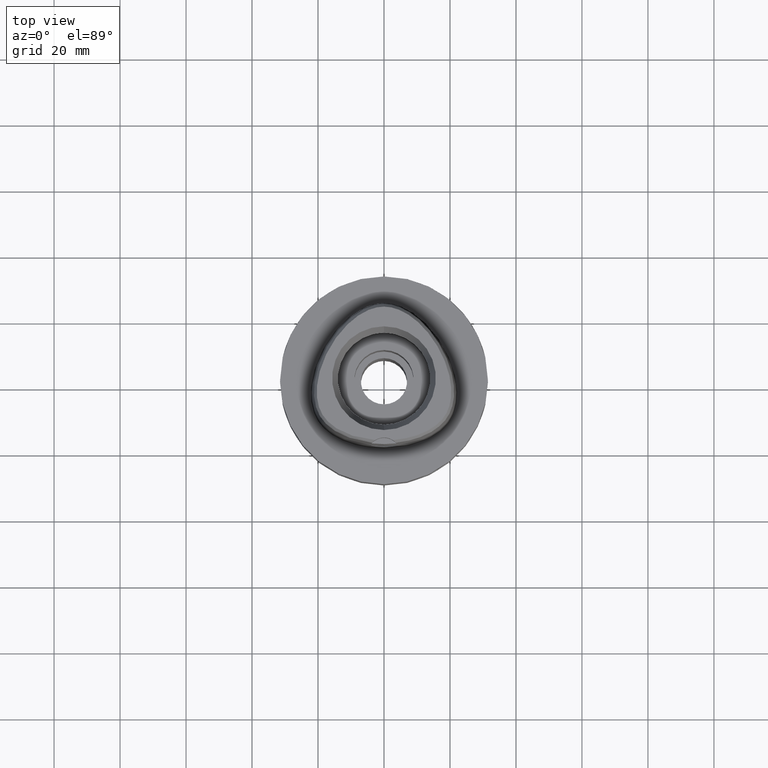
[diagram: clean part render]
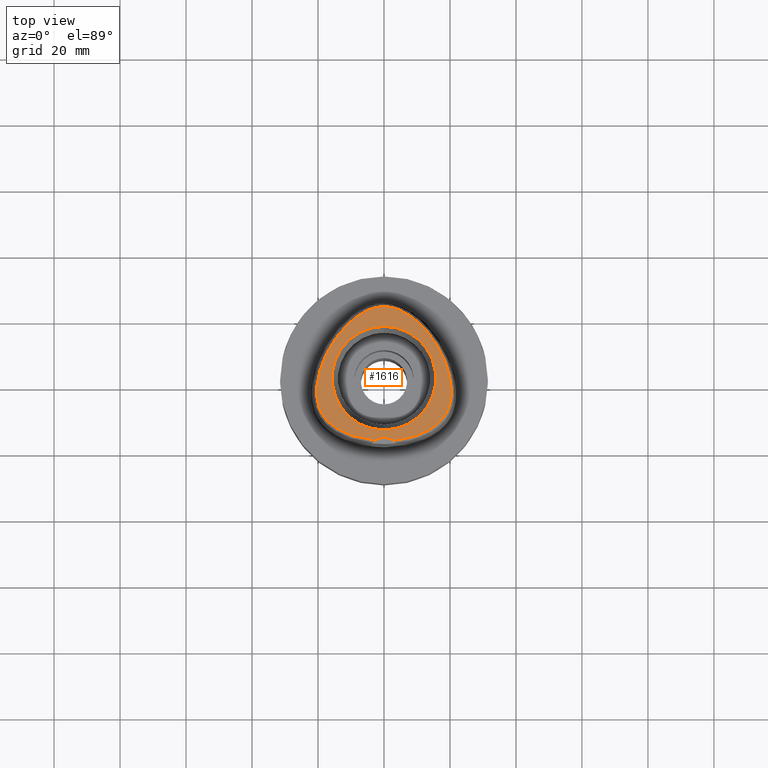
[diagram: same view with one face highlighted and labeled with its STEP entity id]
A machine part, top view. The second image highlights one B-rep face of the part: STEP entity #1616.
In plain terms, the highlighted planar face has unit normal (0, 0, 1).
Its self-contained STEP definition (entity closure, byte-faithful):
#17=CARTESIAN_POINT('',(0.E0,-2.3E1,3.8E1));
#18=DIRECTION('',(0.E0,0.E0,1.E0));
#19=DIRECTION('',(5.364574965210E-1,8.439273395420E-1,0.E0));
#20=AXIS2_PLACEMENT_3D('',#17,#18,#19);
#26=CARTESIAN_POINT('',(0.E0,-2.3E1,3.8E1));
#27=DIRECTION('',(0.E0,0.E0,1.E0));
#28=DIRECTION('',(0.E0,1.E0,0.E0));
#29=AXIS2_PLACEMENT_3D('',#26,#27,#28);
#34=CARTESIAN_POINT('',(-2.682279906005E0,-1.878035848610E1,3.8E1));
#35=CARTESIAN_POINT('',(-3.620369790138E0,-1.870527781278E1,3.8E1));
#36=CARTESIAN_POINT('',(-5.416835015216E0,-1.848309282578E1,3.8E1));
#37=CARTESIAN_POINT('',(-7.936839375353E0,-1.794949570830E1,3.8E1));
#38=CARTESIAN_POINT('',(-1.009893005838E1,-1.729204628455E1,3.8E1));
#39=CARTESIAN_POINT('',(-1.197782394665E1,-1.654423378328E1,3.8E1));
#40=CARTESIAN_POINT('',(-1.366422268405E1,-1.569113323478E1,3.8E1));
#41=CARTESIAN_POINT('',(-1.511337511315E1,-1.477148114975E1,3.8E1));
#42=CARTESIAN_POINT('',(-1.631824693866E1,-1.382450713044E1,3.8E1));
#43=CARTESIAN_POINT('',(-1.731386229497E1,-1.285896672688E1,3.8E1));
#44=CARTESIAN_POINT('',(-1.812615722037E1,-1.188070671320E1,3.8E1));
#45=CARTESIAN_POINT('',(-1.878030290091E1,-1.089041709611E1,3.8E1));
#46=CARTESIAN_POINT('',(-1.931851999936E1,-9.834266462694E0,3.8E1));
#47=CARTESIAN_POINT('',(-1.976654275095E1,-8.649386095509E0,3.8E1));
#48=CARTESIAN_POINT('',(-2.011190454344E1,-7.316935930296E0,3.8E1));
#49=CARTESIAN_POINT('',(-2.033848759449E1,-5.813669485457E0,3.8E1));
#50=CARTESIAN_POINT('',(-2.042152105318E1,-4.110922809647E0,3.8E1));
#51=CARTESIAN_POINT('',(-2.032950353507E1,-2.232769449869E0,3.8E1));
#52=CARTESIAN_POINT('',(-2.005138443809E1,-2.421746057823E-1,3.8E1));
#53=CARTESIAN_POINT('',(-1.955387679450E1,1.952900691575E0,3.8E1));
#54=CARTESIAN_POINT('',(-1.877321649469E1,4.396047042882E0,3.8E1));
#55=CARTESIAN_POINT('',(-1.771828954545E1,6.919575998513E0,3.8E1));
#56=CARTESIAN_POINT('',(-1.641234483656E1,9.426744338106E0,3.8E1));
#57=CARTESIAN_POINT('',(-1.490256571999E1,1.181144692011E1,3.8E1));
#58=CARTESIAN_POINT('',(-1.324564171571E1,1.399759316990E1,3.8E1));
#59=CARTESIAN_POINT('',(-1.152291964286E1,1.590235926311E1,3.8E1));
#60=CARTESIAN_POINT('',(-9.867098770098E0,1.744277137744E1,3.8E1));
#61=CARTESIAN_POINT('',(-8.279316458459E0,1.868759695564E1,3.8E1));
#62=CARTESIAN_POINT('',(-6.708983723205E0,1.970678277505E1,3.8E1));
#63=CARTESIAN_POINT('',(-5.191300115663E0,2.049472079314E1,3.8E1));
#64=CARTESIAN_POINT('',(-3.772399551218E0,2.105814671624E1,3.8E1));
#65=CARTESIAN_POINT('',(-2.441004416454E0,2.143208517279E1,3.8E1));
#66=CARTESIAN_POINT('',(-1.193848002600E0,2.164215911143E1,3.8E1));
#67=CARTESIAN_POINT('',(-3.915896148576E-1,2.168728795389E1,3.8E1));
#68=CARTESIAN_POINT('',(-3.470944899546E-11,2.168728795390E1,3.8E1));
#73=CARTESIAN_POINT('',(-3.470944899546E-11,2.168728795390E1,3.8E1));
#74=CARTESIAN_POINT('',(3.910528996937E-1,2.168728795390E1,3.8E1));
#75=CARTESIAN_POINT('',(1.192419882234E0,2.164230064702E1,3.8E1));
#76=CARTESIAN_POINT('',(2.439312618307E0,2.143244975518E1,3.8E1));
#77=CARTESIAN_POINT('',(3.769938665607E0,2.105895897888E1,3.8E1));
#78=CARTESIAN_POINT('',(5.188534911567E0,2.049598177510E1,3.8E1));
#79=CARTESIAN_POINT('',(6.708840759938E0,1.970721061303E1,3.8E1));
#80=CARTESIAN_POINT('',(8.288327781335E0,1.868130366046E1,3.8E1));
#81=CARTESIAN_POINT('',(9.871900740931E0,1.743831191668E1,3.8E1));
#82=CARTESIAN_POINT('',(1.152381487347E1,1.590148404062E1,3.8E1));
#83=CARTESIAN_POINT('',(1.324983082185E1,1.399274020925E1,3.8E1));
#84=CARTESIAN_POINT('',(1.490753962868E1,1.180433426647E1,3.8E1));
#85=CARTESIAN_POINT('',(1.641718407251E1,9.418287537656E0,3.8E1));
#86=CARTESIAN_POINT('',(1.772216308343E1,6.911503442209E0,3.8E1));
#87=CARTESIAN_POINT('',(1.877729180374E1,4.384749778804E0,3.8E1));
#88=CARTESIAN_POINT('',(1.955479820405E1,1.949090468574E0,3.8E1));
#89=CARTESIAN_POINT('',(2.005266369091E1,-2.485000525841E-1,3.8E1));
#90=CARTESIAN_POINT('',(2.033014910534E1,-2.239758286297E0,3.8E1));
#91=CARTESIAN_POINT('',(2.042155196657E1,-4.117253291635E0,3.8E1));
#92=CARTESIAN_POINT('',(2.033780424946E1,-5.820533406779E0,3.8E1));
#93=CARTESIAN_POINT('',(2.011081409039E1,-7.322303255437E0,3.8E1));
#94=CARTESIAN_POINT('',(1.976485457957E1,-8.654406478318E0,3.8E1));
#95=CARTESIAN_POINT('',(1.931827192672E1,-9.834480202575E0,3.8E1));
#96=CARTESIAN_POINT('',(1.878096534002E1,-1.088912517759E1,3.8E1));
#97=CARTESIAN_POINT('',(1.812924513801E1,-1.187623801830E1,3.8E1));
#98=CARTESIAN_POINT('',(1.732045282568E1,-1.285179059992E1,3.8E1));
#99=CARTESIAN_POINT('',(1.632592830117E1,-1.381773115211E1,3.8E1));
#100=CARTESIAN_POINT('',(1.512488203981E1,-1.476329668197E1,3.8E1));
#101=CARTESIAN_POINT('',(1.367436798020E1,-1.568568991984E1,3.8E1));
#102=CARTESIAN_POINT('',(1.198210042193E1,-1.654229574791E1,3.8E1));
#103=CARTESIAN_POINT('',(1.010860193586E1,-1.728866781321E1,3.8E1));
#104=CARTESIAN_POINT('',(7.939624477773E0,-1.794903250760E1,3.8E1));
#105=CARTESIAN_POINT('',(5.415617715839E0,-1.848332636438E1,3.8E1));
#106=CARTESIAN_POINT('',(3.619511630402E0,-1.870534070385E1,3.8E1));
#107=CARTESIAN_POINT('',(2.682287482607E0,-1.878036330229E1,3.8E1));
#112=CARTESIAN_POINT('',(0.E0,0.E0,3.8E1));
#113=DIRECTION('',(0.E0,0.E0,1.E0));
#114=DIRECTION('',(0.E0,1.E0,0.E0));
#115=AXIS2_PLACEMENT_3D('',#112,#113,#114);
#120=CARTESIAN_POINT('',(0.E0,0.E0,3.8E1));
#121=DIRECTION('',(0.E0,0.E0,1.E0));
#122=DIRECTION('',(0.E0,-1.E0,0.E0));
#123=AXIS2_PLACEMENT_3D('',#120,#121,#122);
#1432=CARTESIAN_POINT('',(0.E0,-1.8E1,3.8E1));
#1433=CARTESIAN_POINT('',(-2.682279906007E0,-1.878035848610E1,3.8E1));
#1434=VERTEX_POINT('',#1432);
#1435=VERTEX_POINT('',#1433);
#1436=CARTESIAN_POINT('',(2.682287482605E0,-1.878036330229E1,3.8E1));
#1437=VERTEX_POINT('',#1436);
#1438=VERTEX_POINT('',#68);
#1439=CARTESIAN_POINT('',(0.E0,1.571487483156E1,3.8E1));
#1440=CARTESIAN_POINT('',(0.E0,-1.571487483156E1,3.8E1));
#1441=VERTEX_POINT('',#1439);
#1442=VERTEX_POINT('',#1440);
#1595=CARTESIAN_POINT('',(0.E0,0.E0,3.8E1));
#1596=DIRECTION('',(0.E0,0.E0,1.E0));
#1597=DIRECTION('',(0.E0,1.E0,0.E0));
#1598=AXIS2_PLACEMENT_3D('',#1595,#1596,#1597);
#1599=PLANE('',#1598);
#1601=ORIENTED_EDGE('',*,*,#1600,.T.);
#1603=ORIENTED_EDGE('',*,*,#1602,.T.);
#1605=ORIENTED_EDGE('',*,*,#1604,.T.);
#1607=ORIENTED_EDGE('',*,*,#1606,.T.);
#1608=EDGE_LOOP('',(#1601,#1603,#1605,#1607));
#1609=FACE_OUTER_BOUND('',#1608,.F.);
#1611=ORIENTED_EDGE('',*,*,#1610,.T.);
#1613=ORIENTED_EDGE('',*,*,#1612,.T.);
#1614=EDGE_LOOP('',(#1611,#1613));
#1615=FACE_BOUND('',#1614,.F.);
#21=CIRCLE('',#20,5.E0);
#30=CIRCLE('',#29,5.E0);
#69=B_SPLINE_CURVE_WITH_KNOTS('',3,(#34,#35,#36,#37,#38,#39,#40,#41,#42,#43,#44,
#45,#46,#47,#48,#49,#50,#51,#52,#53,#54,#55,#56,#57,#58,#59,#60,#61,#62,#63,#64,
#65,#66,#67,#68),.UNSPECIFIED.,.F.,.F.,(4,1,1,1,1,1,1,1,1,1,1,1,1,1,1,1,1,1,1,1,
1,1,1,1,1,1,1,1,1,1,1,1,4),(0.E0,3.125E-2,6.25E-2,9.375E-2,1.25E-1,1.5625E-1,
1.875E-1,2.1875E-1,2.5E-1,2.8125E-1,3.125E-1,3.4375E-1,3.75E-1,4.0625E-1,
4.375E-1,4.6875E-1,5.E-1,5.3125E-1,5.625E-1,5.9375E-1,6.25E-1,6.5625E-1,
6.875E-1,7.1875E-1,7.5E-1,7.8125E-1,8.125E-1,8.4375E-1,8.75E-1,9.0625E-1,
9.375E-1,9.6875E-1,1.E0),.UNSPECIFIED.);
#108=B_SPLINE_CURVE_WITH_KNOTS('',3,(#73,#74,#75,#76,#77,#78,#79,#80,#81,#82,
#83,#84,#85,#86,#87,#88,#89,#90,#91,#92,#93,#94,#95,#96,#97,#98,#99,#100,#101,
#102,#103,#104,#105,#106,#107),.UNSPECIFIED.,.F.,.F.,(4,1,1,1,1,1,1,1,1,1,1,1,1,
1,1,1,1,1,1,1,1,1,1,1,1,1,1,1,1,1,1,1,4),(0.E0,3.125E-2,6.25E-2,9.375E-2,
1.25E-1,1.5625E-1,1.875E-1,2.1875E-1,2.5E-1,2.8125E-1,3.125E-1,3.4375E-1,
3.75E-1,4.0625E-1,4.375E-1,4.6875E-1,5.E-1,5.3125E-1,5.625E-1,5.9375E-1,6.25E-1,
6.5625E-1,6.875E-1,7.1875E-1,7.5E-1,7.8125E-1,8.125E-1,8.4375E-1,8.75E-1,
9.0625E-1,9.375E-1,9.6875E-1,1.E0),.UNSPECIFIED.);
#116=CIRCLE('',#115,1.571487483156E1);
#124=CIRCLE('',#123,1.571487483156E1);
#1600=EDGE_CURVE('',#1437,#1434,#21,.T.);
#1602=EDGE_CURVE('',#1434,#1435,#30,.T.);
#1604=EDGE_CURVE('',#1435,#1438,#69,.T.);
#1606=EDGE_CURVE('',#1438,#1437,#108,.T.);
#1610=EDGE_CURVE('',#1441,#1442,#116,.T.);
#1612=EDGE_CURVE('',#1442,#1441,#124,.T.);
#1616=ADVANCED_FACE('',(#1609,#1615),#1599,.T.);